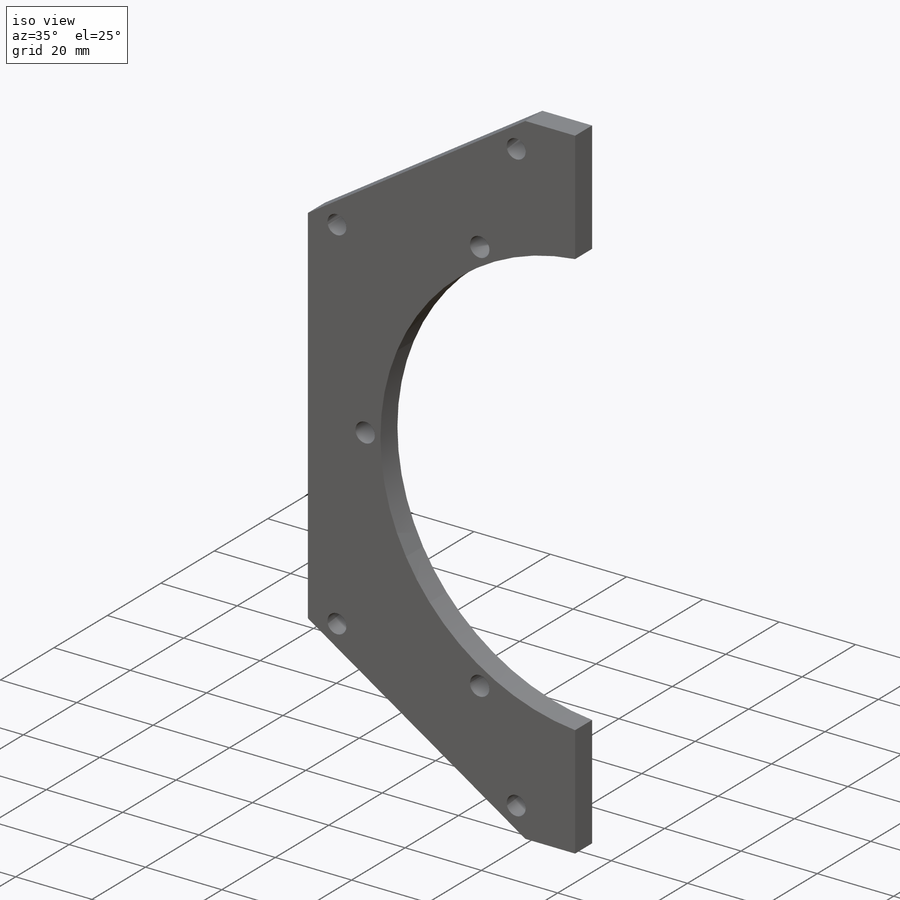
[diagram: iso view]
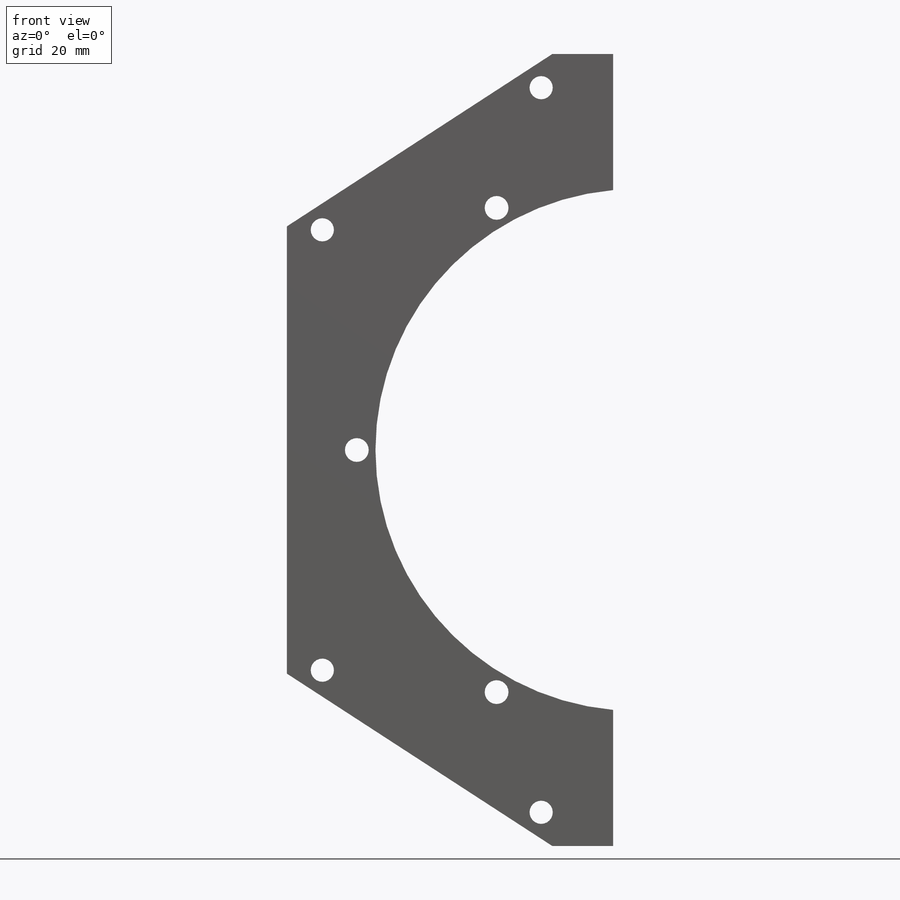
[diagram: front view]
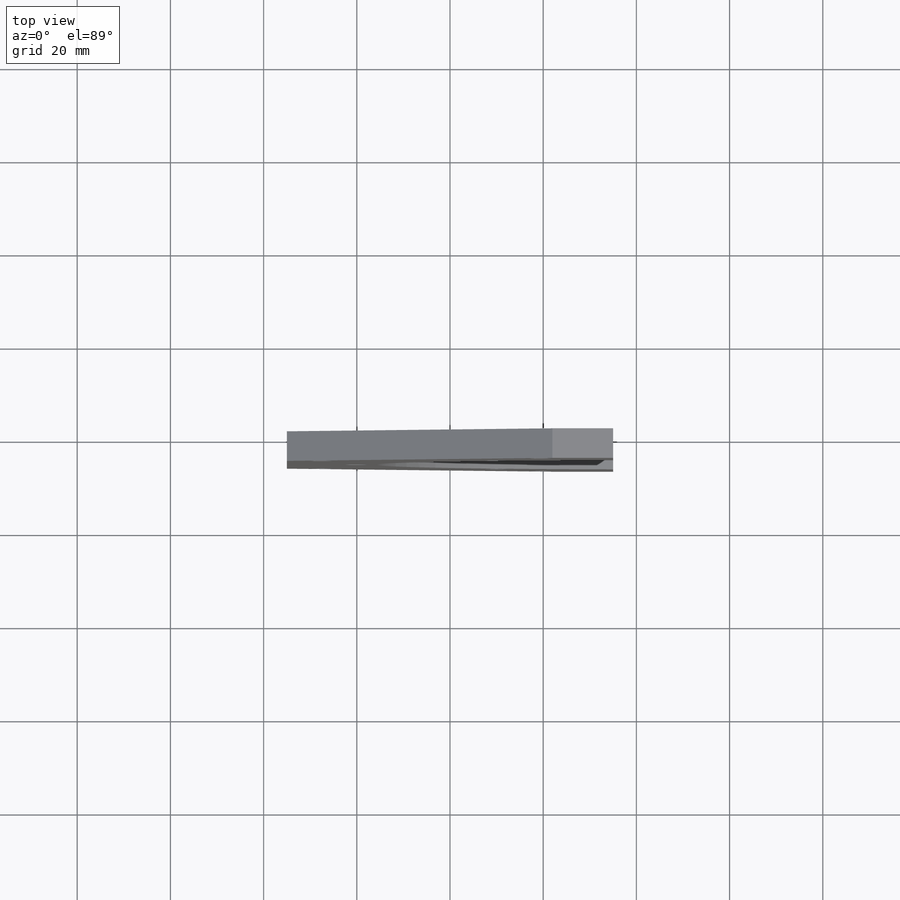
[diagram: top view]
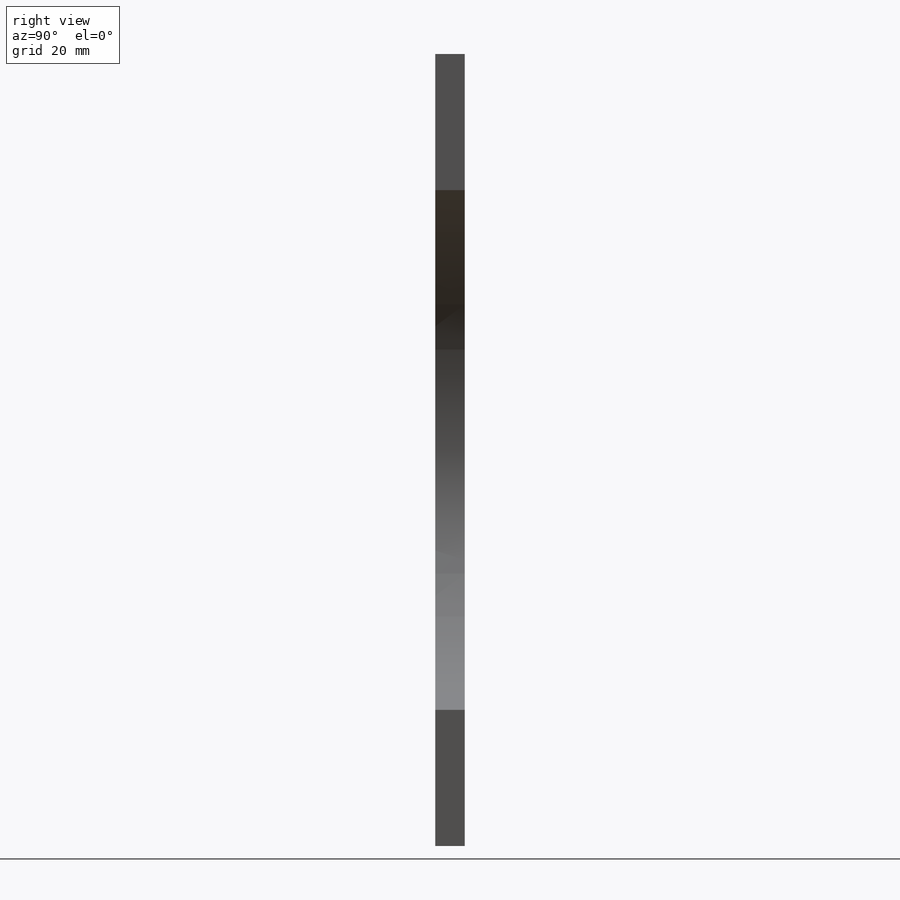
[diagram: right view]
SOLIDWORKS PART (.sldprt)
format: sldprt  version: not decoded by parser v0  size: 246,784 bytes
history: native  units: mm
features: sketch x6, hole x2, material x1, extrude x1, cut_extrude x1, mirror x1, pattern_circular x1 (+11 scaffold rows collapsed)
feature tree (24):
  scaffold x11  (default folders/planes/origin — collapsed)
  material  "6061-T6 (SS)"
  sketch  "Sketch1"  dims[c1.D1=142.55mm c1.D2=42.55mm c1.D3=5.0mm c1.D4=~54.280488mm c2.D4=33.0deg c2.D5=9.525mm c2.D6=50.0mm c2.D7=26.0mm c3.D6=~4.071355mm c3.D5=34.0mm c4.D6=47.0mm c4.D5=70.0mm c5.D6=85.0mm c5.D7=48.0mm c5.D8=4.7625mm c5.D9=56.0mm]
  extrude  "Boss-Extrude1"  Depth=6.35mm
  hole  "#10 Clearance Hole1"  Diameter=4.9784mm Depth=135.89mm
  sketch  "Sketch3"
  sketch  "Sketch2"  dims[hole-wizard template sketch: 47 standard entries collapsed; hole parameters kept: c15.Hole Depth=135.89mm c15.D3=~14.816244mm c15.Drill Angle=118.0deg]
  sketch  "Sketch4"  dims[D1=112.0mm]
  cut_extrude  "Cut-Extrude1"  [1 undecoded]
  mirror  "Mirror1"
  hole  "#10 Clearance Hole2"  Diameter=5.1054mm Depth=6.35mm
  sketch  "Sketch6"  dims[c1.D1=~34.458046mm c2.D1=30.0deg c2.D2=60.0mm]
  sketch  "Sketch5"  dims[hole-wizard template sketch: 60 standard entries collapsed; hole parameters kept: c18.Thru Hole Depth=6.35mm]
  pattern_circular  "CirPattern1"  Count=3 Angle=60deg
decode coverage: 9 of 12 modeling features carry decoded parameters
note: ~ marks probable driven/reference dimensions
note: 1 parameter value undecoded
note: suppression state not decoded; provenance and decode notes live in map.json
